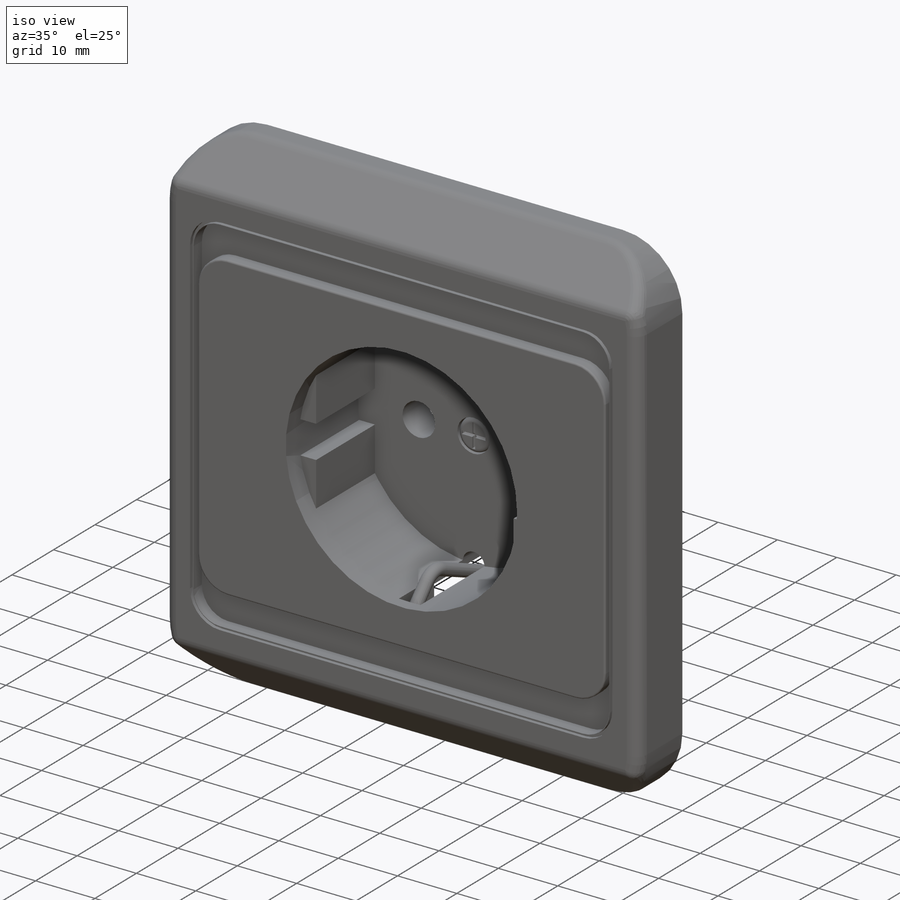
[diagram: iso view]
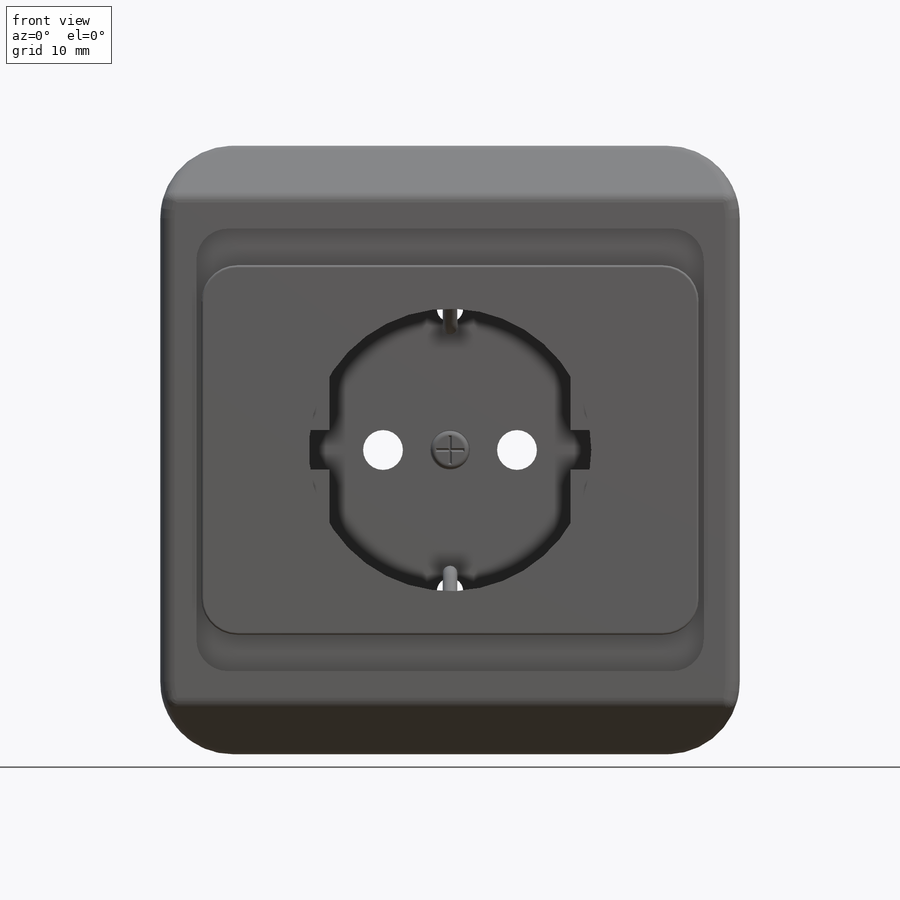
[diagram: front view]
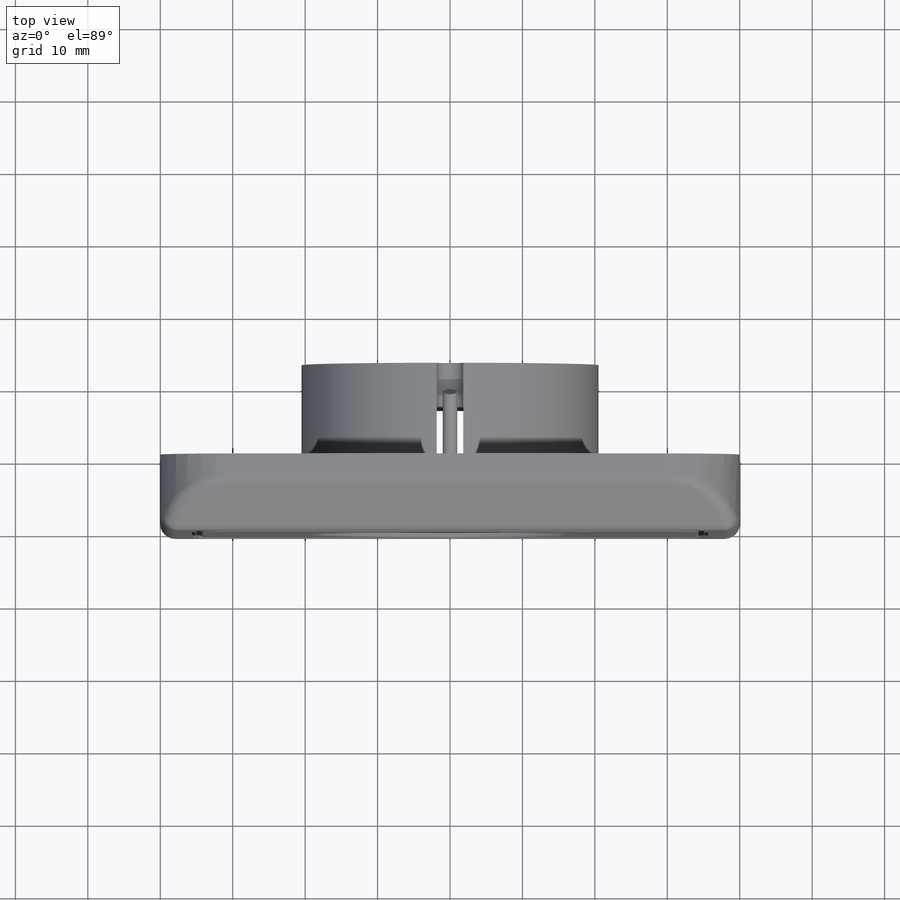
[diagram: top view]
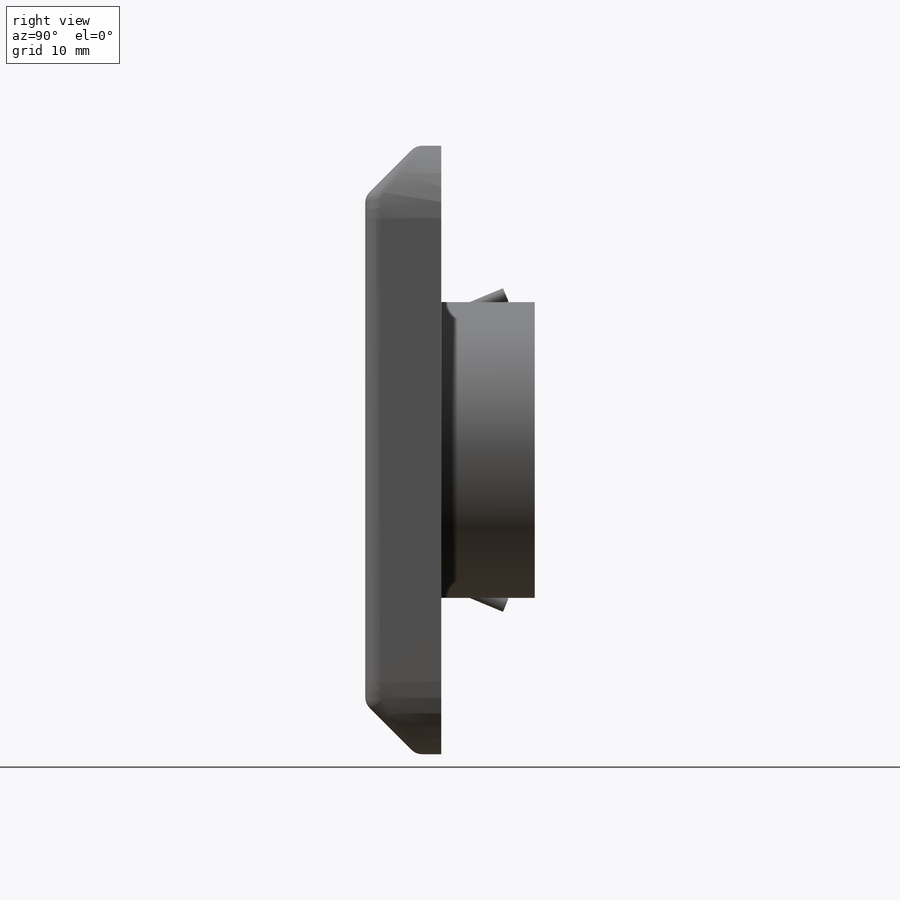
[diagram: right view]
SOLIDWORKS PART (.sldprt)
format: sldprt  version: not decoded by parser v0  size: 701,952 bytes
history: native  units: mm
features: sketch x17, extrude x8, cut_extrude x7, plane x6, fillet x3, chamfer x3, material x1, sweep x1, mirror x1 (+9 scaffold rows collapsed)
feature tree (56):
  scaffold x9  (default folders/planes/origin — collapsed)
  material  "Malzeme <belirli değil>"
  plane  "Ön Düzlem"
  plane  "Üst Düzlem"
  plane  "Sağ Düzlem"
  sketch  "Çizim1"  dims[D3=10.0mm D1=84.0mm D2=80.0mm]
  extrude  "Yükseklik-Ekstrüzyon1"  Depth=10.5mm
  sketch  "Çizim2"  dims[D3=5.0mm D1=62.3mm D2=71.25mm D4=0.6mm]
  cut_extrude  "Kes-Ekstrüzyon1"  Depth=0.6mm
  sketch  "Çizim3"  dims[D3=5.0mm D1=0.7mm D2=51.0mm D4=0.0mm]
  cut_extrude  "Kes-Ekstrüzyon2"  Depth=2mm
  sketch  "Çizim4"  dims[D1=39.0mm]
  cut_extrude  "Kes-Ekstrüzyon3"  Depth=51mm
  sketch  "Çizim5"  dims[D1=1.0mm]
  extrude  "Yükseklik-Ekstrüzyon2"  Depth=6.9mm
  sketch  "Çizim6"  dims[D1=0.0mm]
  extrude  "Yükseklik-Ekstrüzyon3"  Depth=1mm
  sketch  "Çizim7"  dims[D3=39.0mm D1=33.3mm D2=5.5mm]
  extrude  "Yükseklik-Ekstrüzyon4"  Depth=14.15mm
  sketch  "Çizim8"  dims[D1=3.65mm D2=3.0mm]
  cut_extrude  "Kes-Ekstrüzyon4"  Depth=24.15mm
  plane  "Düzlem1"
  sketch  "Çizim10"  dims[c1.D7=3.0mm c1.D1=1.0mm c1.D2=1.0mm c1.D3=~4.555541mm c2.D3=110.0deg c2.D4=5.0mm c2.D5=12.0mm c2.D6=4.8mm]
  plane  "Düzlem2"
  sketch  "Çizim11"  dims[D1=2.0mm]
  sweep  "Süpür1"
  plane  "Düzlem3"
  mirror  "Aynalama1"
  sketch  "Çizim12"  dims[c1.D1=5.5mm c1.D2=5.5mm c1.D3=8.0mm c1.D4=8.0mm c2.D3=13.0mm c2.D4=6.5mm]
  cut_extrude  "Kes-Ekstrüzyon5"  Depth=24.15mm
  sketch  "Çizim13"
  cut_extrude  "Kes-Ekstrüzyon6"  Depth=24.15mm
  sketch  "Çizim14"  dims[D1=1.0mm]
  extrude  "Yükseklik-Ekstrüzyon5"  Depth=1mm
  sketch  "Çizim15"  dims[D1=0.1mm]
  extrude  "Yükseklik-Ekstrüzyon6"  Depth=1mm
  fillet  "Radyus1"  Radius=0.7mm
  sketch  "Çizim16"  dims[D1=4.0mm D2=0.5mm]
  cut_extrude  "Kes-Ekstrüzyon7"  Depth=0.5mm
  chamfer  "Pah1"  Distance=0.2mm Angle=45deg
  chamfer  "Pah4"  Distance=7mm Angle=45deg
  chamfer  "Pah6"  Distance=7mm Angle=45deg
  fillet  "Radyus2"  Radius=0.3mm
  sketch  "Çizim17"  dims[D1=0.0mm D2=0.1mm]
  extrude  "Yükseklik-Ekstrüzyon7"  [1 undecoded]
  fillet  "Radyus3"  Radius=2mm
  sketch  "Çizim19"  dims[D1=0.0mm]
  extrude  "Yükseklik-Ekstrüzyon9"  Depth=5mm
decode coverage: 36 of 40 modeling features carry decoded parameters
note: ~ marks probable driven/reference dimensions
note: 1 parameter value undecoded
note: suppression state not decoded; provenance and decode notes live in map.json
